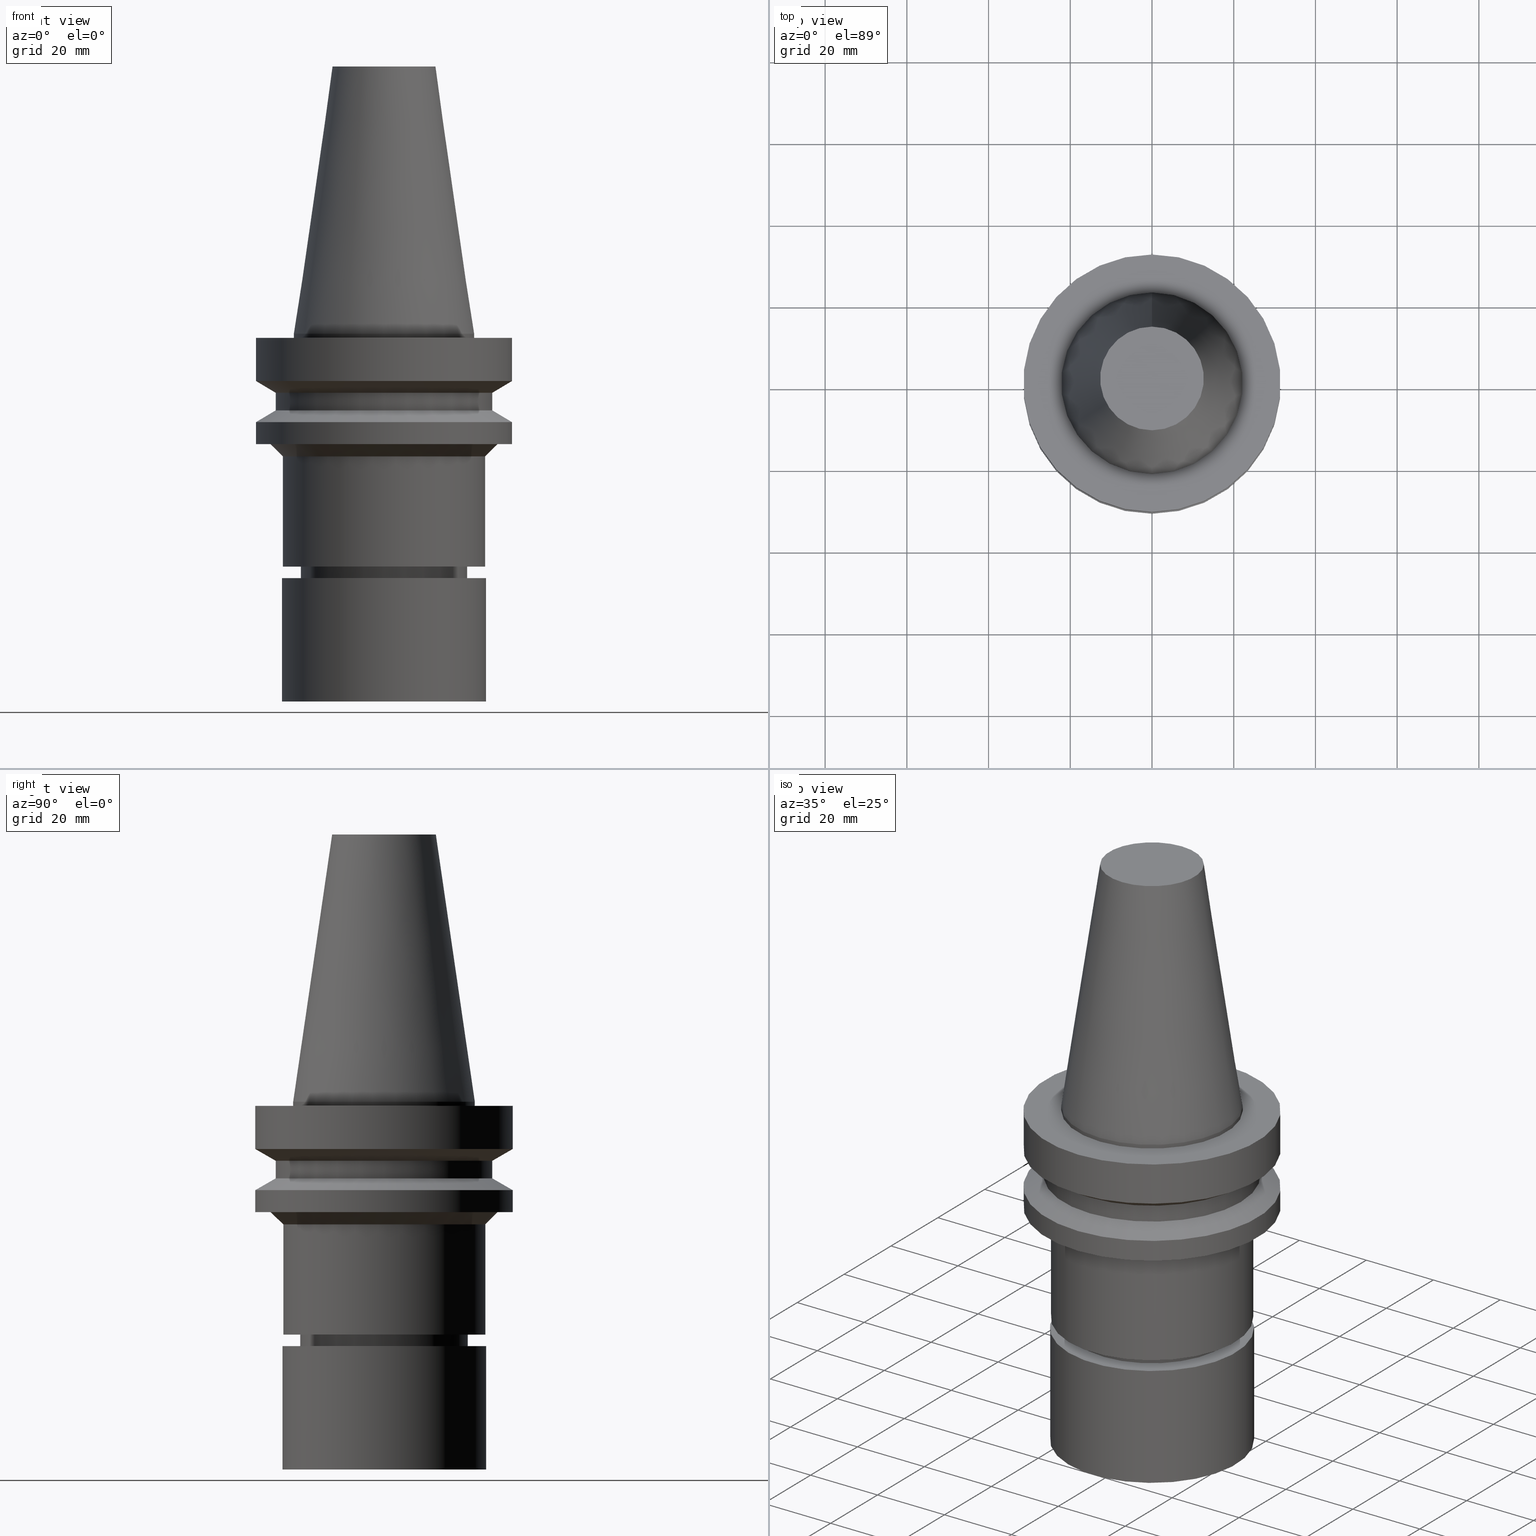
[diagram: canonical four-view strip — front | top / right | iso, engineering-drawing reading convention]
A machine part, canonical four-view strip (front | top / right | iso — engineering-drawing reading convention). The complete STEP part file that produces these views, byte-faithful:
ISO-10303-21;
HEADER;
FILE_DESCRIPTION((''),'1');
FILE_NAME('V:/90_\X2\53D65F9730C730FC30BF\X0\/00_\X2\6DE18DEF30C730FC30BF\X0\/ALL/BBT-BKUS\X2\FF76FF80FF9BFF78FF9E752852A05DE556F3\X0\201801/BBT40-MEGAER/BBT40-MEGAER32-90NL.stp','2018-02-07T02:28:29',(''),(''),'Spatial Interop R21 SP3','Kubotek KeyCreator 2011 V10.0.2 (22737)',' ');
FILE_SCHEMA(('automotive_design'));
ENDSEC;
DATA;
#1=MECHANICAL_DESIGN_GEOMETRIC_PRESENTATION_REPRESENTATION(' ',(#14,#15,#16,#17,#18,#19,#20,#21,#22,#23,#24,#25,#26,#27,#28,#29,#30,#31,#32,#33,#34,#35,#36,#37,#38,#39,#40,#41,#42,#43,#44,#45,#46,#47,#48,#49,#50,#51,#52,#53,#54,#55),#10);
#2=PRODUCT_DEFINITION_CONTEXT('',#56,'design');
#3=APPLICATION_PROTOCOL_DEFINITION('INTERNATIONAL STANDARD','automotive_design',1994,#56);
#4=PRODUCT_CATEGORY_RELATIONSHIP('NONE','NONE',#57,#58);
#5=SHAPE_DEFINITION_REPRESENTATION(#59,#60);
#6=PRODUCT_DEFINITION_CONTEXT('',#61,'design');
#7=APPLICATION_PROTOCOL_DEFINITION('INTERNATIONAL STANDARD','automotive_design',1994,#61);
#8=PRODUCT_CATEGORY_RELATIONSHIP('NONE','NONE',#62,#63);
#9=SHAPE_DEFINITION_REPRESENTATION(#64,#65);
#10= (GEOMETRIC_REPRESENTATION_CONTEXT(3)GLOBAL_UNCERTAINTY_ASSIGNED_CONTEXT((#68))GLOBAL_UNIT_ASSIGNED_CONTEXT((#70,#71,#72))REPRESENTATION_CONTEXT('NONE','WORKSPACE'));
#14=STYLED_ITEM('',(#74,#75),#76);
#15=STYLED_ITEM('',(#77,#78),#79);
#16=STYLED_ITEM('',(#80),#81);
#17=STYLED_ITEM('',(#82,#83),#84);
#18=STYLED_ITEM('',(#85),#86);
#19=STYLED_ITEM('',(#87),#88);
#20=STYLED_ITEM('',(#89),#90);
#21=STYLED_ITEM('',(#91,#92),#93);
#22=STYLED_ITEM('',(#94),#95);
#23=STYLED_ITEM('',(#96,#97),#98);
#24=STYLED_ITEM('',(#99),#100);
#25=STYLED_ITEM('',(#101,#102),#103);
#26=STYLED_ITEM('',(#104),#105);
#27=STYLED_ITEM('',(#106),#107);
#28=STYLED_ITEM('',(#108),#109);
#29=STYLED_ITEM('',(#110,#111),#112);
#30=STYLED_ITEM('',(#113),#114);
#31=STYLED_ITEM('',(#115,#116),#117);
#32=STYLED_ITEM('',(#118),#119);
#33=STYLED_ITEM('',(#120,#121),#122);
#34=STYLED_ITEM('',(#123,#124),#125);
#35=STYLED_ITEM('',(#126),#127);
#36=STYLED_ITEM('',(#128,#129),#130);
#37=STYLED_ITEM('',(#131,#132),#133);
#38=STYLED_ITEM('',(#134),#135);
#39=STYLED_ITEM('',(#136,#137),#138);
#40=STYLED_ITEM('',(#139),#140);
#41=STYLED_ITEM('',(#141,#142),#143);
#42=STYLED_ITEM('',(#144,#145),#146);
#43=STYLED_ITEM('',(#147,#148),#149);
#44=STYLED_ITEM('',(#150,#151),#152);
#45=STYLED_ITEM('',(#153),#154);
#46=STYLED_ITEM('',(#155,#156),#157);
#47=STYLED_ITEM('',(#158),#159);
#48=STYLED_ITEM('',(#160,#161),#162);
#49=STYLED_ITEM('',(#163),#164);
#50=STYLED_ITEM('',(#165),#166);
#51=STYLED_ITEM('',(#167,#168),#169);
#52=STYLED_ITEM('',(#170,#171),#172);
#53=STYLED_ITEM('',(#173),#174);
#54=STYLED_ITEM('',(#175,#176),#177);
#55=STYLED_ITEM('',(#178,#179),#180);
#56=APPLICATION_CONTEXT(' ');
#57=PRODUCT_CATEGORY('part','NONE');
#58=PRODUCT_RELATED_PRODUCT_CATEGORY('detail',' ',(#181));
#59=PRODUCT_DEFINITION_SHAPE('NONE','NONE',#182);
#60=ADVANCED_BREP_SHAPE_REPRESENTATION('Unnamed[1]',(#180,#183),#10);
#61=APPLICATION_CONTEXT(' ');
#62=PRODUCT_CATEGORY('part','NONE');
#63=PRODUCT_RELATED_PRODUCT_CATEGORY('detail',' ',(#184));
#64=PRODUCT_DEFINITION_SHAPE('NONE','NONE',#185);
#65=ADVANCED_BREP_SHAPE_REPRESENTATION('Unnamed[1]',(#125,#186),#10);
#68=UNCERTAINTY_MEASURE_WITH_UNIT(LENGTH_MEASURE(1.0E-006),#70,'','');
#70= (CONVERSION_BASED_UNIT('MILLIMETRE',#189)LENGTH_UNIT()NAMED_UNIT(#192));
#71= (NAMED_UNIT(#194)PLANE_ANGLE_UNIT()SI_UNIT($,.RADIAN.));
#72= (NAMED_UNIT(#194)SOLID_ANGLE_UNIT()SI_UNIT($,.STERADIAN.));
#74=PRESENTATION_STYLE_ASSIGNMENT((#200));
#75=PRESENTATION_STYLE_ASSIGNMENT((#201));
#76=ADVANCED_FACE('Unnamed[1]',(#202,#203),#204,.T.);
#77=PRESENTATION_STYLE_ASSIGNMENT((#205));
#78=PRESENTATION_STYLE_ASSIGNMENT((#206));
#79=ADVANCED_FACE('Unnamed[1]',(#207,#208),#209,.F.);
#80=PRESENTATION_STYLE_ASSIGNMENT((#210));
#81=EDGE_CURVE('Unnamed[1]',#211,#211,#212,.T.);
#82=PRESENTATION_STYLE_ASSIGNMENT((#213));
#83=PRESENTATION_STYLE_ASSIGNMENT((#214));
#84=ADVANCED_FACE('Unnamed[1]',(#215,#216),#217,.T.);
#85=PRESENTATION_STYLE_ASSIGNMENT((#218));
#86=EDGE_CURVE('Unnamed[1]',#219,#219,#220,.T.);
#87=PRESENTATION_STYLE_ASSIGNMENT((#221));
#88=EDGE_CURVE('Unnamed[1]',#222,#222,#223,.T.);
#89=PRESENTATION_STYLE_ASSIGNMENT((#224));
#90=EDGE_CURVE('Unnamed[1]',#225,#225,#226,.T.);
#91=PRESENTATION_STYLE_ASSIGNMENT((#227));
#92=PRESENTATION_STYLE_ASSIGNMENT((#228));
#93=ADVANCED_FACE('Unnamed[1]',(#229,#230),#231,.T.);
#94=PRESENTATION_STYLE_ASSIGNMENT((#232));
#95=EDGE_CURVE('Unnamed[1]',#233,#233,#234,.T.);
#96=PRESENTATION_STYLE_ASSIGNMENT((#235));
#97=PRESENTATION_STYLE_ASSIGNMENT((#236));
#98=ADVANCED_FACE('Unnamed[1]',(#237),#238,.T.);
#99=PRESENTATION_STYLE_ASSIGNMENT((#239));
#100=EDGE_CURVE('Unnamed[1]',#240,#240,#241,.T.);
#101=PRESENTATION_STYLE_ASSIGNMENT((#242));
#102=PRESENTATION_STYLE_ASSIGNMENT((#243));
#103=ADVANCED_FACE('Unnamed[1]',(#244,#245),#246,.T.);
#104=PRESENTATION_STYLE_ASSIGNMENT((#247));
#105=EDGE_CURVE('Unnamed[1]',#248,#248,#249,.T.);
#106=PRESENTATION_STYLE_ASSIGNMENT((#250));
#107=EDGE_CURVE('Unnamed[1]',#251,#251,#252,.T.);
#108=PRESENTATION_STYLE_ASSIGNMENT((#253));
#109=EDGE_CURVE('Unnamed[1]',#254,#254,#255,.T.);
#110=PRESENTATION_STYLE_ASSIGNMENT((#256));
#111=PRESENTATION_STYLE_ASSIGNMENT((#257));
#112=ADVANCED_FACE('Unnamed[1]',(#258,#259),#260,.T.);
#113=PRESENTATION_STYLE_ASSIGNMENT((#261));
#114=EDGE_CURVE('Unnamed[1]',#262,#262,#263,.T.);
#115=PRESENTATION_STYLE_ASSIGNMENT((#264));
#116=PRESENTATION_STYLE_ASSIGNMENT((#265));
#117=ADVANCED_FACE('Unnamed[1]',(#266),#267,.T.);
#118=PRESENTATION_STYLE_ASSIGNMENT((#268));
#119=EDGE_CURVE('Unnamed[1]',#269,#269,#270,.T.);
#120=PRESENTATION_STYLE_ASSIGNMENT((#271));
#121=PRESENTATION_STYLE_ASSIGNMENT((#272));
#122=ADVANCED_FACE('Unnamed[1]',(#273),#274,.T.);
#123=PRESENTATION_STYLE_ASSIGNMENT((#275));
#124=PRESENTATION_STYLE_ASSIGNMENT((#276));
#125=MANIFOLD_SOLID_BREP('Unnamed[1]',#277);
#126=PRESENTATION_STYLE_ASSIGNMENT((#278));
#127=EDGE_CURVE('Unnamed[1]',#279,#279,#280,.T.);
#128=PRESENTATION_STYLE_ASSIGNMENT((#281));
#129=PRESENTATION_STYLE_ASSIGNMENT((#282));
#130=ADVANCED_FACE('Unnamed[1]',(#283,#284),#285,.T.);
#131=PRESENTATION_STYLE_ASSIGNMENT((#286));
#132=PRESENTATION_STYLE_ASSIGNMENT((#287));
#133=ADVANCED_FACE('Unnamed[1]',(#288,#289),#290,.T.);
#134=PRESENTATION_STYLE_ASSIGNMENT((#291));
#135=EDGE_CURVE('Unnamed[1]',#292,#292,#293,.T.);
#136=PRESENTATION_STYLE_ASSIGNMENT((#294));
#137=PRESENTATION_STYLE_ASSIGNMENT((#295));
#138=ADVANCED_FACE('Unnamed[1]',(#296,#297),#298,.T.);
#139=PRESENTATION_STYLE_ASSIGNMENT((#299));
#140=EDGE_CURVE('Unnamed[1]',#300,#300,#301,.T.);
#141=PRESENTATION_STYLE_ASSIGNMENT((#302));
#142=PRESENTATION_STYLE_ASSIGNMENT((#303));
#143=ADVANCED_FACE('Unnamed[1]',(#304,#305),#306,.T.);
#144=PRESENTATION_STYLE_ASSIGNMENT((#307));
#145=PRESENTATION_STYLE_ASSIGNMENT((#308));
#146=ADVANCED_FACE('Unnamed[1]',(#309,#310),#311,.T.);
#147=PRESENTATION_STYLE_ASSIGNMENT((#312));
#148=PRESENTATION_STYLE_ASSIGNMENT((#313));
#149=ADVANCED_FACE('Unnamed[1]',(#314,#315),#316,.T.);
#150=PRESENTATION_STYLE_ASSIGNMENT((#317));
#151=PRESENTATION_STYLE_ASSIGNMENT((#318));
#152=ADVANCED_FACE('Unnamed[1]',(#319,#320),#321,.T.);
#153=PRESENTATION_STYLE_ASSIGNMENT((#322));
#154=EDGE_CURVE('Unnamed[1]',#323,#323,#324,.T.);
#155=PRESENTATION_STYLE_ASSIGNMENT((#325));
#156=PRESENTATION_STYLE_ASSIGNMENT((#326));
#157=ADVANCED_FACE('Unnamed[1]',(#327,#328),#329,.T.);
#158=PRESENTATION_STYLE_ASSIGNMENT((#330));
#159=EDGE_CURVE('Unnamed[1]',#331,#331,#332,.T.);
#160=PRESENTATION_STYLE_ASSIGNMENT((#333));
#161=PRESENTATION_STYLE_ASSIGNMENT((#334));
#162=ADVANCED_FACE('Unnamed[1]',(#335,#336),#337,.T.);
#163=PRESENTATION_STYLE_ASSIGNMENT((#338));
#164=EDGE_CURVE('Unnamed[1]',#339,#339,#340,.T.);
#165=PRESENTATION_STYLE_ASSIGNMENT((#341));
#166=EDGE_CURVE('Unnamed[1]',#342,#342,#343,.T.);
#167=PRESENTATION_STYLE_ASSIGNMENT((#344));
#168=PRESENTATION_STYLE_ASSIGNMENT((#345));
#169=ADVANCED_FACE('Unnamed[1]',(#346,#347),#348,.T.);
#170=PRESENTATION_STYLE_ASSIGNMENT((#349));
#171=PRESENTATION_STYLE_ASSIGNMENT((#350));
#172=ADVANCED_FACE('Unnamed[1]',(#351,#352),#353,.T.);
#173=PRESENTATION_STYLE_ASSIGNMENT((#354));
#174=EDGE_CURVE('Unnamed[1]',#355,#355,#356,.T.);
#175=PRESENTATION_STYLE_ASSIGNMENT((#357));
#176=PRESENTATION_STYLE_ASSIGNMENT((#358));
#177=ADVANCED_FACE('Unnamed[1]',(#359),#360,.T.);
#178=PRESENTATION_STYLE_ASSIGNMENT((#361));
#179=PRESENTATION_STYLE_ASSIGNMENT((#362));
#180=MANIFOLD_SOLID_BREP('Unnamed[1]',#363);
#181=PRODUCT('Unnamed[1]','Unnamed[1]','PART-Unnamed[1]-DESC',(#364));
#182=PRODUCT_DEFINITION('NONE','NONE',#365,#2);
#183=AXIS2_PLACEMENT_3D('',#366,#367,#368);
#184=PRODUCT('Unnamed[1]','Unnamed[1]','PART-Unnamed[1]-DESC',(#369));
#185=PRODUCT_DEFINITION('NONE','NONE',#370,#6);
#186=AXIS2_PLACEMENT_3D('',#371,#372,#373);
#189=LENGTH_MEASURE_WITH_UNIT(LENGTH_MEASURE(1.0),#374);
#192=DIMENSIONAL_EXPONENTS(1.0,0.0,0.0,0.0,0.0,0.0,0.0);
#194=DIMENSIONAL_EXPONENTS(0.0,0.0,0.0,0.0,0.0,0.0,0.0);
#200=SURFACE_STYLE_USAGE(.BOTH.,#375);
#201=CURVE_STYLE('',#376,POSITIVE_LENGTH_MEASURE(1000.0),#377);
#202=FACE_BOUND('',#378,.T.);
#203=FACE_BOUND('',#379,.T.);
#204=CONICAL_SURFACE('',#380,17.4562500000001,0.144812498238936);
#205=SURFACE_STYLE_USAGE(.BOTH.,#381);
#206=CURVE_STYLE('',#382,POSITIVE_LENGTH_MEASURE(1000.0),#383);
#207=FACE_BOUND('',#384,.T.);
#208=FACE_BOUND('',#385,.T.);
#209=CONICAL_SURFACE('',#386,29.6500621984489,1.57075486116235);
#210=CURVE_STYLE('',#387,POSITIVE_LENGTH_MEASURE(1000.0),#388);
#211=VERTEX_POINT('',#389);
#212=CIRCLE('',#390,26.4999999999994);
#213=SURFACE_STYLE_USAGE(.BOTH.,#391);
#214=CURVE_STYLE('',#392,POSITIVE_LENGTH_MEASURE(1000.0),#393);
#215=FACE_BOUND('',#394,.T.);
#216=FACE_BOUND('',#395,.T.);
#217=CYLINDRICAL_SURFACE('',#396,22.225);
#218=CURVE_STYLE('',#397,POSITIVE_LENGTH_MEASURE(1000.0),#398);
#219=VERTEX_POINT('',#399);
#220=CIRCLE('',#400,31.5000000000003);
#221=CURVE_STYLE('',#401,POSITIVE_LENGTH_MEASURE(1000.0),#402);
#222=VERTEX_POINT('',#403);
#223=CIRCLE('',#404,31.5000000000007);
#224=CURVE_STYLE('',#405,POSITIVE_LENGTH_MEASURE(1000.0),#406);
#225=VERTEX_POINT('',#407);
#226=CIRCLE('',#408,24.9999999999999);
#227=SURFACE_STYLE_USAGE(.BOTH.,#409);
#228=CURVE_STYLE('',#410,POSITIVE_LENGTH_MEASURE(1000.0),#411);
#229=FACE_BOUND('',#412,.T.);
#230=FACE_BOUND('',#413,.T.);
#231=CONICAL_SURFACE('',#414,28.9999999999999,1.04719755119657);
#232=CURVE_STYLE('',#415,POSITIVE_LENGTH_MEASURE(1000.0),#416);
#233=VERTEX_POINT('',#417);
#234=CIRCLE('',#418,12.6875000000001);
#235=SURFACE_STYLE_USAGE(.BOTH.,#419);
#236=CURVE_STYLE('',#420,POSITIVE_LENGTH_MEASURE(1000.0),#421);
#237=FACE_OUTER_BOUND('',#422,.T.);
#238=PLANE('',#423);
#239=CURVE_STYLE('',#424,POSITIVE_LENGTH_MEASURE(1000.0),#425);
#240=VERTEX_POINT('',#426);
#241=CIRCLE('',#427,26.5);
#242=SURFACE_STYLE_USAGE(.BOTH.,#428);
#243=CURVE_STYLE('',#429,POSITIVE_LENGTH_MEASURE(1000.0),#430);
#244=FACE_BOUND('',#431,.T.);
#245=FACE_BOUND('',#432,.T.);
#246=CYLINDRICAL_SURFACE('',#433,31.5000000000005);
#247=CURVE_STYLE('',#434,POSITIVE_LENGTH_MEASURE(1000.0),#435);
#248=VERTEX_POINT('',#436);
#249=CIRCLE('',#437,20.499999999991);
#250=CURVE_STYLE('',#438,POSITIVE_LENGTH_MEASURE(1000.0),#439);
#251=VERTEX_POINT('',#440);
#252=CIRCLE('',#441,18.8999999999996);
#253=CURVE_STYLE('',#442,POSITIVE_LENGTH_MEASURE(1000.0),#443);
#254=VERTEX_POINT('',#444);
#255=CIRCLE('',#445,24.9999999999999);
#256=SURFACE_STYLE_USAGE(.BOTH.,#446);
#257=CURVE_STYLE('',#447,POSITIVE_LENGTH_MEASURE(1000.0),#448);
#258=FACE_OUTER_BOUND('',#449,.T.);
#259=FACE_BOUND('',#450,.T.);
#260=PLANE('',#451);
#261=CURVE_STYLE('',#452,POSITIVE_LENGTH_MEASURE(1000.0),#453);
#262=VERTEX_POINT('',#454);
#263=CIRCLE('',#455,20.5000000000011);
#264=SURFACE_STYLE_USAGE(.BOTH.,#456);
#265=CURVE_STYLE('',#457,POSITIVE_LENGTH_MEASURE(1000.0),#458);
#266=FACE_OUTER_BOUND('',#459,.T.);
#267=PLANE('',#460);
#268=CURVE_STYLE('',#461,POSITIVE_LENGTH_MEASURE(1000.0),#462);
#269=VERTEX_POINT('',#463);
#270=CIRCLE('',#464,24.8000000000002);
#271=SURFACE_STYLE_USAGE(.BOTH.,#465);
#272=CURVE_STYLE('',#466,POSITIVE_LENGTH_MEASURE(1000.0),#467);
#273=FACE_OUTER_BOUND('',#468,.T.);
#274=PLANE('',#469);
#275=SURFACE_STYLE_USAGE(.BOTH.,#470);
#276=CURVE_STYLE('',#471,POSITIVE_LENGTH_MEASURE(1000.0),#472);
#277=CLOSED_SHELL('',(#177,#117,#157));
#278=CURVE_STYLE('',#473,POSITIVE_LENGTH_MEASURE(1000.0),#474);
#279=VERTEX_POINT('',#475);
#280=CIRCLE('',#476,24.7999999999998);
#281=SURFACE_STYLE_USAGE(.BOTH.,#477);
#282=CURVE_STYLE('',#478,POSITIVE_LENGTH_MEASURE(1000.0),#479);
#283=FACE_BOUND('',#480,.T.);
#284=FACE_BOUND('',#481,.T.);
#285=CONICAL_SURFACE('',#482,29.0000000000003,1.04719755119651);
#286=SURFACE_STYLE_USAGE(.BOTH.,#483);
#287=CURVE_STYLE('',#484,POSITIVE_LENGTH_MEASURE(1000.0),#485);
#288=FACE_BOUND('',#486,.T.);
#289=FACE_OUTER_BOUND('',#487,.T.);
#290=PLANE('',#488);
#291=CURVE_STYLE('',#489,POSITIVE_LENGTH_MEASURE(1000.0),#490);
#292=VERTEX_POINT('',#491);
#293=CIRCLE('',#492,31.5000000000003);
#294=SURFACE_STYLE_USAGE(.BOTH.,#493);
#295=CURVE_STYLE('',#494,POSITIVE_LENGTH_MEASURE(1000.0),#495);
#296=FACE_BOUND('',#496,.T.);
#297=FACE_BOUND('',#497,.T.);
#298=CYLINDRICAL_SURFACE('',#498,24.8);
#299=CURVE_STYLE('',#499,POSITIVE_LENGTH_MEASURE(1000.0),#500);
#300=VERTEX_POINT('',#501);
#301=CIRCLE('',#502,22.225);
#302=SURFACE_STYLE_USAGE(.BOTH.,#503);
#303=CURVE_STYLE('',#504,POSITIVE_LENGTH_MEASURE(1000.0),#505);
#304=FACE_BOUND('',#506,.T.);
#305=FACE_BOUND('',#507,.T.);
#306=CYLINDRICAL_SURFACE('',#508,31.5);
#307=SURFACE_STYLE_USAGE(.BOTH.,#509);
#308=CURVE_STYLE('',#510,POSITIVE_LENGTH_MEASURE(1000.0),#511);
#309=FACE_BOUND('',#512,.T.);
#310=FACE_BOUND('',#513,.T.);
#311=CONICAL_SURFACE('',#514,20.2500000000005,1.04719755120247);
#312=SURFACE_STYLE_USAGE(.BOTH.,#515);
#313=CURVE_STYLE('',#516,POSITIVE_LENGTH_MEASURE(1000.0),#517);
#314=FACE_BOUND('',#518,.T.);
#315=FACE_BOUND('',#519,.T.);
#316=CYLINDRICAL_SURFACE('',#520,20.4999999999961);
#317=SURFACE_STYLE_USAGE(.BOTH.,#521);
#318=CURVE_STYLE('',#522,POSITIVE_LENGTH_MEASURE(1000.0),#523);
#319=FACE_BOUND('',#524,.T.);
#320=FACE_BOUND('',#525,.T.);
#321=CYLINDRICAL_SURFACE('',#526,20.0);
#322=CURVE_STYLE('',#527,POSITIVE_LENGTH_MEASURE(1000.0),#528);
#323=VERTEX_POINT('',#529);
#324=CIRCLE('',#530,27.8001243968974);
#325=SURFACE_STYLE_USAGE(.BOTH.,#531);
#326=CURVE_STYLE('',#532,POSITIVE_LENGTH_MEASURE(1000.0),#533);
#327=FACE_BOUND('',#534,.T.);
#328=FACE_BOUND('',#535,.T.);
#329=CYLINDRICAL_SURFACE('',#536,24.9999999999999);
#330=CURVE_STYLE('',#537,POSITIVE_LENGTH_MEASURE(1000.0),#538);
#331=VERTEX_POINT('',#539);
#332=CIRCLE('',#540,20.0);
#333=SURFACE_STYLE_USAGE(.BOTH.,#541);
#334=CURVE_STYLE('',#542,POSITIVE_LENGTH_MEASURE(1000.0),#543);
#335=FACE_BOUND('',#544,.T.);
#336=FACE_BOUND('',#545,.T.);
#337=CONICAL_SURFACE('',#546,26.3000621984486,0.785418896213715);
#338=CURVE_STYLE('',#547,POSITIVE_LENGTH_MEASURE(1000.0),#548);
#339=VERTEX_POINT('',#549);
#340=CIRCLE('',#550,20.0);
#341=CURVE_STYLE('',#551,POSITIVE_LENGTH_MEASURE(1000.0),#552);
#342=VERTEX_POINT('',#553);
#343=CIRCLE('',#554,22.225);
#344=SURFACE_STYLE_USAGE(.BOTH.,#555);
#345=CURVE_STYLE('',#556,POSITIVE_LENGTH_MEASURE(1000.0),#557);
#346=FACE_BOUND('',#558,.T.);
#347=FACE_BOUND('',#559,.T.);
#348=CYLINDRICAL_SURFACE('',#560,26.4999999999997);
#349=SURFACE_STYLE_USAGE(.BOTH.,#561);
#350=CURVE_STYLE('',#562,POSITIVE_LENGTH_MEASURE(1000.0),#563);
#351=FACE_BOUND('',#564,.T.);
#352=FACE_BOUND('',#565,.T.);
#353=CONICAL_SURFACE('',#566,19.4499999999998,0.523598775598222);
#354=CURVE_STYLE('',#567,POSITIVE_LENGTH_MEASURE(1000.0),#568);
#355=VERTEX_POINT('',#569);
#356=CIRCLE('',#570,31.4999999999996);
#357=SURFACE_STYLE_USAGE(.BOTH.,#571);
#358=CURVE_STYLE('',#572,POSITIVE_LENGTH_MEASURE(1000.0),#573);
#359=FACE_OUTER_BOUND('',#574,.T.);
#360=PLANE('',#575);
#361=SURFACE_STYLE_USAGE(.BOTH.,#576);
#362=CURVE_STYLE('',#577,POSITIVE_LENGTH_MEASURE(1000.0),#578);
#363=CLOSED_SHELL('',(#122,#76,#84,#112,#143,#93,#169,#130,#103,#79,#162,#138,#133,#149,#146,#152,#172,#98));
#364=PRODUCT_CONTEXT('',#56,'mechanical');
#365=PRODUCT_DEFINITION_FORMATION_WITH_SPECIFIED_SOURCE(' ','NONE',#181,.NOT_KNOWN.);
#366=CARTESIAN_POINT('',(0.0,0.0,0.0));
#367=DIRECTION('',(0.0,0.0,1.0));
#368=DIRECTION('',(1.0,0.0,0.0));
#369=PRODUCT_CONTEXT('',#61,'mechanical');
#370=PRODUCT_DEFINITION_FORMATION_WITH_SPECIFIED_SOURCE(' ','NONE',#184,.NOT_KNOWN.);
#371=CARTESIAN_POINT('',(0.0,0.0,0.0));
#372=DIRECTION('',(0.0,0.0,1.0));
#373=DIRECTION('',(1.0,0.0,0.0));
#374= (NAMED_UNIT(#192)LENGTH_UNIT()SI_UNIT(.MILLI.,.METRE.));
#375=SURFACE_SIDE_STYLE('',(#580));
#376=DRAUGHTING_PRE_DEFINED_CURVE_FONT('continuous');
#377=COLOUR_RGB('',0.0,1.0,0.0);
#378=EDGE_LOOP('',(#581));
#379=EDGE_LOOP('',(#582));
#380=AXIS2_PLACEMENT_3D('',#583,#584,#585);
#381=SURFACE_SIDE_STYLE('',(#586));
#382=DRAUGHTING_PRE_DEFINED_CURVE_FONT('continuous');
#383=COLOUR_RGB('',0.0,1.0,0.0);
#384=EDGE_LOOP('',(#587));
#385=EDGE_LOOP('',(#588));
#386=AXIS2_PLACEMENT_3D('',#589,#590,#591);
#387=DRAUGHTING_PRE_DEFINED_CURVE_FONT('continuous');
#388=COLOUR_RGB('',0.0,1.0,0.0);
#389=CARTESIAN_POINT('',(8.8494551369045E-016,26.4999999999995,-14.4522569986152));
#390=AXIS2_PLACEMENT_3D('',#592,#593,#594);
#391=SURFACE_SIDE_STYLE('',(#595));
#392=DRAUGHTING_PRE_DEFINED_CURVE_FONT('continuous');
#393=COLOUR_RGB('',0.0,1.0,0.0);
#394=EDGE_LOOP('',(#596));
#395=EDGE_LOOP('',(#597));
#396=AXIS2_PLACEMENT_3D('',#598,#599,#600);
#397=DRAUGHTING_PRE_DEFINED_CURVE_FONT('continuous');
#398=COLOUR_RGB('',0.0,1.0,0.0);
#399=CARTESIAN_POINT('',(7.08182973902924E-016,31.5000000000004,-11.5655056526664));
#400=AXIS2_PLACEMENT_3D('',#601,#602,#603);
#401=DRAUGHTING_PRE_DEFINED_CURVE_FONT('continuous');
#402=COLOUR_RGB('',0.0,1.0,0.0);
#403=CARTESIAN_POINT('',(1.32473071268174E-015,31.5000000000007,-21.6344943473346));
#404=AXIS2_PLACEMENT_3D('',#604,#605,#606);
#405=DRAUGHTING_PRE_DEFINED_CURVE_FONT('continuous');
#406=COLOUR_RGB('',0.0,1.0,0.0);
#407=CARTESIAN_POINT('',(5.51091059616309E-015,25.0,-90.0));
#408=AXIS2_PLACEMENT_3D('',#607,#608,#609);
#409=SURFACE_SIDE_STYLE('',(#610));
#410=DRAUGHTING_PRE_DEFINED_CURVE_FONT('continuous');
#411=COLOUR_RGB('',0.0,1.0,0.0);
#412=EDGE_LOOP('',(#611));
#413=EDGE_LOOP('',(#612));
#414=AXIS2_PLACEMENT_3D('',#613,#614,#615);
#415=DRAUGHTING_PRE_DEFINED_CURVE_FONT('continuous');
#416=COLOUR_RGB('',0.0,1.0,0.0);
#417=CARTESIAN_POINT('',(-4.00459503321185E-015,12.6875000000002,65.4000000000001));
#418=AXIS2_PLACEMENT_3D('',#616,#617,#618);
#419=SURFACE_SIDE_STYLE('',(#619));
#420=DRAUGHTING_PRE_DEFINED_CURVE_FONT('continuous');
#421=COLOUR_RGB('',0.0,1.0,0.0);
#422=EDGE_LOOP('',(#620));
#423=AXIS2_PLACEMENT_3D('',#621,#622,#623);
#424=DRAUGHTING_PRE_DEFINED_CURVE_FONT('continuous');
#425=COLOUR_RGB('',0.0,1.0,0.0);
#426=CARTESIAN_POINT('',(1.1479681728942E-015,26.5,-18.7477430013855));
#427=AXIS2_PLACEMENT_3D('',#624,#625,#626);
#428=SURFACE_SIDE_STYLE('',(#627));
#429=DRAUGHTING_PRE_DEFINED_CURVE_FONT('continuous');
#430=COLOUR_RGB('',0.0,1.0,0.0);
#431=EDGE_LOOP('',(#628));
#432=EDGE_LOOP('',(#629));
#433=AXIS2_PLACEMENT_3D('',#630,#631,#632);
#434=DRAUGHTING_PRE_DEFINED_CURVE_FONT('continuous');
#435=COLOUR_RGB('',0.0,1.0,0.0);
#436=CARTESIAN_POINT('',(3.49025302591329E-015,20.4999999999911,-57.0001575694044));
#437=AXIS2_PLACEMENT_3D('',#633,#634,#635);
#438=DRAUGHTING_PRE_DEFINED_CURVE_FONT('continuous');
#439=COLOUR_RGB('',0.0,1.0,0.0);
#440=CARTESIAN_POINT('',(4.83735485663205E-015,18.8999999999997,-79.0000000000001));
#441=AXIS2_PLACEMENT_3D('',#636,#637,#638);
#442=DRAUGHTING_PRE_DEFINED_CURVE_FONT('continuous');
#443=COLOUR_RGB('',0.0,1.0,0.0);
#444=CARTESIAN_POINT('',(3.66169392945059E-015,25.0,-59.8));
#445=AXIS2_PLACEMENT_3D('',#639,#640,#641);
#446=SURFACE_SIDE_STYLE('',(#642));
#447=DRAUGHTING_PRE_DEFINED_CURVE_FONT('continuous');
#448=COLOUR_RGB('',0.0,1.0,0.0);
#449=EDGE_LOOP('',(#643));
#450=EDGE_LOOP('',(#644));
#451=AXIS2_PLACEMENT_3D('',#645,#646,#647);
#452=DRAUGHTING_PRE_DEFINED_CURVE_FONT('continuous');
#453=COLOUR_RGB('',0.0,1.0,0.0);
#454=CARTESIAN_POINT('',(3.87058698165691E-015,20.5000000000011,-63.211482434801));
#455=AXIS2_PLACEMENT_3D('',#648,#649,#650);
#456=SURFACE_SIDE_STYLE('',(#651));
#457=DRAUGHTING_PRE_DEFINED_CURVE_FONT('continuous');
#458=COLOUR_RGB('',0.0,1.0,0.0);
#459=EDGE_LOOP('',(#652));
#460=AXIS2_PLACEMENT_3D('',#653,#654,#655);
#461=DRAUGHTING_PRE_DEFINED_CURVE_FONT('continuous');
#462=COLOUR_RGB('',0.0,1.0,0.0);
#463=CARTESIAN_POINT('',(3.49025302591327E-015,24.8000000000003,-57.0001575694041));
#464=AXIS2_PLACEMENT_3D('',#656,#657,#658);
#465=SURFACE_SIDE_STYLE('',(#659));
#466=DRAUGHTING_PRE_DEFINED_CURVE_FONT('continuous');
#467=COLOUR_RGB('',0.0,1.0,0.0);
#468=EDGE_LOOP('',(#660));
#469=AXIS2_PLACEMENT_3D('',#661,#662,#663);
#470=SURFACE_SIDE_STYLE('',(#664));
#471=DRAUGHTING_PRE_DEFINED_CURVE_FONT('continuous');
#472=COLOUR_RGB('',0.0,1.0,0.0);
#473=DRAUGHTING_PRE_DEFINED_CURVE_FONT('continuous');
#474=COLOUR_RGB('',0.0,1.0,0.0);
#475=CARTESIAN_POINT('',(1.83697045278272E-015,24.7999999999998,-30.0000041491423));
#476=AXIS2_PLACEMENT_3D('',#665,#666,#667);
#477=SURFACE_SIDE_STYLE('',(#668));
#478=DRAUGHTING_PRE_DEFINED_CURVE_FONT('continuous');
#479=COLOUR_RGB('',0.0,1.0,0.0);
#480=EDGE_LOOP('',(#669));
#481=EDGE_LOOP('',(#670));
#482=AXIS2_PLACEMENT_3D('',#671,#672,#673);
#483=SURFACE_SIDE_STYLE('',(#674));
#484=DRAUGHTING_PRE_DEFINED_CURVE_FONT('continuous');
#485=COLOUR_RGB('',0.0,1.0,0.0);
#486=EDGE_LOOP('',(#675));
#487=EDGE_LOOP('',(#676));
#488=AXIS2_PLACEMENT_3D('',#677,#678,#679);
#489=DRAUGHTING_PRE_DEFINED_CURVE_FONT('continuous');
#490=COLOUR_RGB('',0.0,1.0,0.0);
#491=CARTESIAN_POINT('',(1.65328282719222E-015,31.5000000000004,-27.0001575694036));
#492=AXIS2_PLACEMENT_3D('',#680,#681,#682);
#493=SURFACE_SIDE_STYLE('',(#683));
#494=DRAUGHTING_PRE_DEFINED_CURVE_FONT('continuous');
#495=COLOUR_RGB('',0.0,1.0,0.0);
#496=EDGE_LOOP('',(#684));
#497=EDGE_LOOP('',(#685));
#498=AXIS2_PLACEMENT_3D('',#686,#687,#688);
#499=DRAUGHTING_PRE_DEFINED_CURVE_FONT('continuous');
#500=COLOUR_RGB('',0.0,1.0,0.0);
#501=CARTESIAN_POINT('',(6.12323399573622E-017,22.2250000000001,-0.999999999999912));
#502=AXIS2_PLACEMENT_3D('',#689,#690,#691);
#503=SURFACE_SIDE_STYLE('',(#692));
#504=DRAUGHTING_PRE_DEFINED_CURVE_FONT('continuous');
#505=COLOUR_RGB('',0.0,1.0,0.0);
#506=EDGE_LOOP('',(#693));
#507=EDGE_LOOP('',(#694));
#508=AXIS2_PLACEMENT_3D('',#695,#696,#697);
#509=SURFACE_SIDE_STYLE('',(#698));
#510=DRAUGHTING_PRE_DEFINED_CURVE_FONT('continuous');
#511=COLOUR_RGB('',0.0,1.0,0.0);
#512=EDGE_LOOP('',(#699));
#513=EDGE_LOOP('',(#700));
#514=AXIS2_PLACEMENT_3D('',#701,#702,#703);
#515=SURFACE_SIDE_STYLE('',(#704));
#516=DRAUGHTING_PRE_DEFINED_CURVE_FONT('continuous');
#517=COLOUR_RGB('',0.0,1.0,0.0);
#518=EDGE_LOOP('',(#705));
#519=EDGE_LOOP('',(#706));
#520=AXIS2_PLACEMENT_3D('',#707,#708,#709);
#521=SURFACE_SIDE_STYLE('',(#710));
#522=DRAUGHTING_PRE_DEFINED_CURVE_FONT('continuous');
#523=COLOUR_RGB('',0.0,1.0,0.0);
#524=EDGE_LOOP('',(#711));
#525=EDGE_LOOP('',(#712));
#526=AXIS2_PLACEMENT_3D('',#713,#714,#715);
#527=DRAUGHTING_PRE_DEFINED_CURVE_FONT('continuous');
#528=COLOUR_RGB('',0.0,1.0,0.0);
#529=CARTESIAN_POINT('',(1.65327343306854E-015,27.8001243968975,-27.0000041517213));
#530=AXIS2_PLACEMENT_3D('',#716,#717,#718);
#531=SURFACE_SIDE_STYLE('',(#719));
#532=DRAUGHTING_PRE_DEFINED_CURVE_FONT('continuous');
#533=COLOUR_RGB('',0.0,1.0,0.0);
#534=EDGE_LOOP('',(#720));
#535=EDGE_LOOP('',(#721));
#536=AXIS2_PLACEMENT_3D('',#722,#723,#724);
#537=DRAUGHTING_PRE_DEFINED_CURVE_FONT('continuous');
#538=COLOUR_RGB('',0.0,1.0,0.0);
#539=CARTESIAN_POINT('',(4.72069158037226E-015,20.0,-77.0947441116734));
#540=AXIS2_PLACEMENT_3D('',#725,#726,#727);
#541=SURFACE_SIDE_STYLE('',(#728));
#542=DRAUGHTING_PRE_DEFINED_CURVE_FONT('continuous');
#543=COLOUR_RGB('',0.0,1.0,0.0);
#544=EDGE_LOOP('',(#729));
#545=EDGE_LOOP('',(#730));
#546=AXIS2_PLACEMENT_3D('',#731,#732,#733);
#547=DRAUGHTING_PRE_DEFINED_CURVE_FONT('continuous');
#548=COLOUR_RGB('',0.0,1.0,0.0);
#549=CARTESIAN_POINT('',(3.88826323563546E-015,20.0,-63.5001575693925));
#550=AXIS2_PLACEMENT_3D('',#734,#735,#736);
#551=DRAUGHTING_PRE_DEFINED_CURVE_FONT('continuous');
#552=COLOUR_RGB('',0.0,1.0,0.0);
#553=CARTESIAN_POINT('',(1.71319921032766E-029,22.2250000000001,-2.8153873565375E-013));
#554=AXIS2_PLACEMENT_3D('',#737,#738,#739);
#555=SURFACE_SIDE_STYLE('',(#740));
#556=DRAUGHTING_PRE_DEFINED_CURVE_FONT('continuous');
#557=COLOUR_RGB('',0.0,1.0,0.0);
#558=EDGE_LOOP('',(#741));
#559=EDGE_LOOP('',(#742));
#560=AXIS2_PLACEMENT_3D('',#743,#744,#745);
#561=SURFACE_SIDE_STYLE('',(#746));
#562=DRAUGHTING_PRE_DEFINED_CURVE_FONT('continuous');
#563=COLOUR_RGB('',0.0,1.0,0.0);
#564=EDGE_LOOP('',(#747));
#565=EDGE_LOOP('',(#748));
#566=AXIS2_PLACEMENT_3D('',#749,#750,#751);
#567=DRAUGHTING_PRE_DEFINED_CURVE_FONT('continuous');
#568=COLOUR_RGB('',0.0,1.0,0.0);
#569=CARTESIAN_POINT('',(6.12323399573568E-017,31.4999999999997,-0.999999999999825));
#570=AXIS2_PLACEMENT_3D('',#752,#753,#754);
#571=SURFACE_SIDE_STYLE('',(#755));
#572=DRAUGHTING_PRE_DEFINED_CURVE_FONT('continuous');
#573=COLOUR_RGB('',0.0,1.0,0.0);
#574=EDGE_LOOP('',(#756));
#575=AXIS2_PLACEMENT_3D('',#757,#758,#759);
#576=SURFACE_SIDE_STYLE('',(#760));
#577=DRAUGHTING_PRE_DEFINED_CURVE_FONT('continuous');
#578=COLOUR_RGB('',0.0,1.0,0.0);
#580=SURFACE_STYLE_FILL_AREA(#761);
#581=ORIENTED_EDGE('',*,*,#166,.F.);
#582=ORIENTED_EDGE('',*,*,#95,.T.);
#583=CARTESIAN_POINT('',(-2.00229751660592E-015,6.88785929402024E-014,32.6999999999999));
#584=DIRECTION('',(6.12323399573677E-017,-2.45986715532914E-016,-1.0));
#585=DIRECTION('',(1.02351894597366E-032,1.0,-2.45986715532914E-016));
#586=SURFACE_STYLE_FILL_AREA(#762);
#587=ORIENTED_EDGE('',*,*,#154,.F.);
#588=ORIENTED_EDGE('',*,*,#135,.T.);
#589=CARTESIAN_POINT('',(1.65327813013038E-015,5.41931661322635E-014,-27.0000808605625));
#590=DIRECTION('',(6.12323399573677E-017,-2.45986715532965E-016,-1.0));
#591=DIRECTION('',(1.02351894597422E-032,1.0,-2.45986715532965E-016));
#592=CARTESIAN_POINT('',(8.84945513690449E-016,5.72797641111494E-014,-14.4522569986152));
#593=DIRECTION('',(6.12323399573677E-017,-2.45986715532853E-016,-1.0));
#594=DIRECTION('',(1.02351894597382E-032,1.0,-2.45986715532853E-016));
#595=SURFACE_STYLE_FILL_AREA(#763);
#596=ORIENTED_EDGE('',*,*,#140,.F.);
#597=ORIENTED_EDGE('',*,*,#166,.T.);
#598=CARTESIAN_POINT('',(3.06161699786891E-017,6.07118339845098E-014,-0.500000000000085));
#599=DIRECTION('',(6.12323399573677E-017,-2.45986715532903E-016,-1.0));
#600=DIRECTION('',(1.02351894597385E-032,1.0,-2.45986715532903E-016));
#601=CARTESIAN_POINT('',(7.08182973902923E-016,5.79898665932995E-014,-11.5655056526663));
#602=DIRECTION('',(6.12323399573677E-017,-2.45986715532946E-016,-1.0));
#603=DIRECTION('',(1.02351894597414E-032,1.0,-2.45986715532946E-016));
#604=CARTESIAN_POINT('',(1.32473071268174E-015,5.55130291355601E-014,-21.6344943473346));
#605=DIRECTION('',(6.12323399573677E-017,-2.45986715532943E-016,-1.0));
#606=DIRECTION('',(1.02351894597413E-032,1.0,-2.45986715532943E-016));
#607=CARTESIAN_POINT('',(5.51091059616309E-015,3.86960229443143E-014,-90.0));
#608=DIRECTION('',(6.12323399573677E-017,-2.45986715532911E-016,-1.0));
#609=DIRECTION('',(1.02351894597385E-032,1.0,-2.45986715532911E-016));
#610=SURFACE_STYLE_FILL_AREA(#764);
#611=ORIENTED_EDGE('',*,*,#81,.F.);
#612=ORIENTED_EDGE('',*,*,#86,.T.);
#613=CARTESIAN_POINT('',(7.96564243796687E-016,5.76348153522245E-014,-13.0088813256408));
#614=DIRECTION('',(-6.12323399573677E-017,2.45986715532903E-016,1.0));
#615=DIRECTION('',(1.02351894597368E-032,1.0,-2.45986715532903E-016));
#616=CARTESIAN_POINT('',(-4.00459503321185E-015,7.69223585381286E-014,65.4000000000001));
#617=DIRECTION('',(6.12323399573677E-017,-2.45986715532932E-016,-1.0));
#618=DIRECTION('',(1.02351894597402E-032,1.0,-2.45986715532932E-016));
#619=SURFACE_STYLE_FILL_AREA(#765);
#620=ORIENTED_EDGE('',*,*,#107,.T.);
#621=CARTESIAN_POINT('',(4.83735485663204E-015,9.44999999999986,-79.0));
#622=DIRECTION('',(6.12323399573677E-017,-1.41635797427754E-014,-1.0));
#623=DIRECTION('',(8.6244197709214E-031,1.0,-1.41635797427754E-014));
#624=CARTESIAN_POINT('',(1.1479681728942E-015,5.62231316177103E-014,-18.7477430013855));
#625=DIRECTION('',(6.12323399573677E-017,-2.4598671553297E-016,-1.0));
#626=DIRECTION('',(1.02351894597447E-032,1.0,-2.4598671553297E-016));
#627=SURFACE_STYLE_FILL_AREA(#766);
#628=ORIENTED_EDGE('',*,*,#135,.F.);
#629=ORIENTED_EDGE('',*,*,#88,.T.);
#630=CARTESIAN_POINT('',(1.48900676993698E-015,5.48530881992338E-014,-24.3173259583691));
#631=DIRECTION('',(6.12323399573677E-017,-2.45986715532944E-016,-1.0));
#632=DIRECTION('',(1.02351894597413E-032,1.0,-2.45986715532944E-016));
#633=CARTESIAN_POINT('',(3.49025302591329E-015,4.68135457969201E-014,-57.0001575694044));
#634=DIRECTION('',(6.12323399573677E-017,-2.45986715532896E-016,-1.0));
#635=DIRECTION('',(1.02351894597376E-032,1.0,-2.45986715532896E-016));
#636=CARTESIAN_POINT('',(4.83735485663205E-015,4.14018768151763E-014,-79.0000000000001));
#637=DIRECTION('',(6.12323399573677E-017,-2.45986715532902E-016,-1.0));
#638=DIRECTION('',(1.02351894597388E-032,1.0,-2.45986715532902E-016));
#639=CARTESIAN_POINT('',(3.66169392945059E-015,4.61248217534082E-014,-59.8));
#640=DIRECTION('',(6.12323399573677E-017,-2.45986715532911E-016,-1.0));
#641=DIRECTION('',(1.02351894597385E-032,1.0,-2.45986715532911E-016));
#642=SURFACE_STYLE_FILL_AREA(#767);
#643=ORIENTED_EDGE('',*,*,#174,.F.);
#644=ORIENTED_EDGE('',*,*,#140,.T.);
#645=CARTESIAN_POINT('',(6.12323399573595E-017,26.8624999999999,-0.999999999999869));
#646=DIRECTION('',(-6.12323399573677E-017,-9.35138060429241E-015,1.0));
#647=DIRECTION('',(5.77434068963536E-031,-1.0,-9.35138060429241E-015));
#648=CARTESIAN_POINT('',(3.87058698165691E-015,4.52856423941733E-014,-63.211482434801));
#649=DIRECTION('',(6.12323399573677E-017,-2.45986715532933E-016,-1.0));
#650=DIRECTION('',(1.0235189459737E-032,1.0,-2.45986715532933E-016));
#651=SURFACE_STYLE_FILL_AREA(#768);
#652=ORIENTED_EDGE('',*,*,#109,.F.);
#653=CARTESIAN_POINT('',(3.66169392945059E-015,12.5,-59.8));
#654=DIRECTION('',(-6.12323399573677E-017,4.45969508693347E-016,1.0));
#655=DIRECTION('',(-2.24806038361622E-032,-1.0,4.45969508693347E-016));
#656=CARTESIAN_POINT('',(3.49025302591327E-015,4.68135457969201E-014,-57.0001575694041));
#657=DIRECTION('',(6.12323399573677E-017,-2.45986715532901E-016,-1.0));
#658=DIRECTION('',(1.02351894597315E-032,1.0,-2.45986715532901E-016));
#659=SURFACE_STYLE_FILL_AREA(#769);
#660=ORIENTED_EDGE('',*,*,#95,.F.);
#661=CARTESIAN_POINT('',(-4.00459503321185E-015,6.34375000000014,65.4000000000001));
#662=DIRECTION('',(-6.12323399573677E-017,9.97602686800683E-016,1.0));
#663=DIRECTION('',(-5.62583941297938E-032,-1.0,9.97602686800683E-016));
#664=SURFACE_STYLE_FILL_AREA(#770);
#665=CARTESIAN_POINT('',(1.83697045278272E-015,5.3455224855655E-014,-30.0000041491423));
#666=DIRECTION('',(6.12323399573677E-017,-2.45986715532905E-016,-1.0));
#667=DIRECTION('',(1.02351894597389E-032,1.0,-2.45986715532905E-016));
#668=SURFACE_STYLE_FILL_AREA(#771);
#669=ORIENTED_EDGE('',*,*,#88,.F.);
#670=ORIENTED_EDGE('',*,*,#100,.T.);
#671=CARTESIAN_POINT('',(1.23634944278797E-015,5.58680803766352E-014,-20.1911186743601));
#672=DIRECTION('',(6.12323399573677E-017,-2.459867155329E-016,-1.0));
#673=DIRECTION('',(1.02351894597367E-032,1.0,-2.459867155329E-016));
#674=SURFACE_STYLE_FILL_AREA(#772);
#675=ORIENTED_EDGE('',*,*,#105,.F.);
#676=ORIENTED_EDGE('',*,*,#119,.T.);
#677=CARTESIAN_POINT('',(3.49025302591328E-015,22.6499999999957,-57.0001575694043));
#678=DIRECTION('',(6.12323399573677E-017,7.44815881895336E-014,-1.0));
#679=DIRECTION('',(-4.56550908131695E-030,1.0,7.44815881895336E-014));
#680=CARTESIAN_POINT('',(1.65328282719222E-015,5.41931472629076E-014,-27.0001575694036));
#681=DIRECTION('',(6.12323399573677E-017,-2.45986715532946E-016,-1.0));
#682=DIRECTION('',(1.02351894597414E-032,1.0,-2.45986715532946E-016));
#683=SURFACE_STYLE_FILL_AREA(#773);
#684=ORIENTED_EDGE('',*,*,#119,.F.);
#685=ORIENTED_EDGE('',*,*,#127,.T.);
#686=CARTESIAN_POINT('',(2.663611739348E-015,5.01343853262876E-014,-43.5000808592732));
#687=DIRECTION('',(6.12323399573677E-017,-2.45986715532903E-016,-1.0));
#688=DIRECTION('',(1.02351894597389E-032,1.0,-2.45986715532903E-016));
#689=CARTESIAN_POINT('',(6.12323399573616E-017,6.05888406267433E-014,-0.999999999999901));
#690=DIRECTION('',(6.12323399573677E-017,-2.45986715532903E-016,-1.0));
#691=DIRECTION('',(1.02351894597385E-032,1.0,-2.45986715532903E-016));
#692=SURFACE_STYLE_FILL_AREA(#774);
#693=ORIENTED_EDGE('',*,*,#86,.F.);
#694=ORIENTED_EDGE('',*,*,#174,.T.);
#695=CARTESIAN_POINT('',(3.8470765693014E-016,5.92893536100214E-014,-6.28275282633308));
#696=DIRECTION('',(6.12323399573677E-017,-2.45986715532948E-016,-1.0));
#697=DIRECTION('',(1.02351894597415E-032,1.0,-2.45986715532948E-016));
#698=SURFACE_STYLE_FILL_AREA(#775);
#699=ORIENTED_EDGE('',*,*,#164,.F.);
#700=ORIENTED_EDGE('',*,*,#114,.T.);
#701=CARTESIAN_POINT('',(3.87942510864618E-015,4.52501372700662E-014,-63.3558200020968));
#702=DIRECTION('',(-6.12323399573677E-017,2.45986715532885E-016,1.0));
#703=DIRECTION('',(1.02351894597374E-032,1.0,-2.45986715532885E-016));
#704=SURFACE_STYLE_FILL_AREA(#776);
#705=ORIENTED_EDGE('',*,*,#114,.F.);
#706=ORIENTED_EDGE('',*,*,#105,.T.);
#707=CARTESIAN_POINT('',(3.6804200037851E-015,4.60495940955467E-014,-60.1058200021027));
#708=DIRECTION('',(6.12323399573677E-017,-2.45986715532914E-016,-1.0));
#709=DIRECTION('',(1.02351894597439E-032,1.0,-2.45986715532914E-016));
#710=SURFACE_STYLE_FILL_AREA(#777);
#711=ORIENTED_EDGE('',*,*,#159,.F.);
#712=ORIENTED_EDGE('',*,*,#164,.T.);
#713=CARTESIAN_POINT('',(4.30447740800386E-015,4.35425882996773E-014,-70.297450840533));
#714=DIRECTION('',(6.12323399573677E-017,-2.45986715532917E-016,-1.0));
#715=DIRECTION('',(1.02351894597379E-032,1.0,-2.45986715532917E-016));
#716=CARTESIAN_POINT('',(1.65327343306854E-015,5.41931850016194E-014,-27.0000041517213));
#717=DIRECTION('',(6.12323399573677E-017,-2.45986715532871E-016,-1.0));
#718=DIRECTION('',(1.02351894597366E-032,1.0,-2.45986715532871E-016));
#719=SURFACE_STYLE_FILL_AREA(#778);
#720=ORIENTED_EDGE('',*,*,#90,.F.);
#721=ORIENTED_EDGE('',*,*,#109,.T.);
#722=CARTESIAN_POINT('',(4.58630226280684E-015,4.24104223488612E-014,-74.9));
#723=DIRECTION('',(6.12323399573677E-017,-2.45986715532911E-016,-1.0));
#724=DIRECTION('',(1.02351894597385E-032,1.0,-2.45986715532911E-016));
#725=CARTESIAN_POINT('',(4.72069158037225E-015,4.18705444533955E-014,-77.0947441116734));
#726=DIRECTION('',(6.12323399573677E-017,-2.45986715532917E-016,-1.0));
#727=DIRECTION('',(1.02351894597379E-032,1.0,-2.45986715532916E-016));
#728=SURFACE_STYLE_FILL_AREA(#779);
#729=ORIENTED_EDGE('',*,*,#127,.F.);
#730=ORIENTED_EDGE('',*,*,#154,.T.);
#731=CARTESIAN_POINT('',(1.74512194292563E-015,5.38242049286372E-014,-28.5000041504318));
#732=DIRECTION('',(-6.12323399573676E-017,2.45986715532887E-016,1.0));
#733=DIRECTION('',(1.02351894597343E-032,1.0,-2.45986715532887E-016));
#734=CARTESIAN_POINT('',(3.88826323563546E-015,4.52146321459591E-014,-63.5001575693925));
#735=DIRECTION('',(6.12323399573677E-017,-2.45986715532917E-016,-1.0));
#736=DIRECTION('',(1.02351894597379E-032,1.0,-2.45986715532917E-016));
#737=CARTESIAN_POINT('',(1.65331138531142E-029,6.08348273422762E-014,-2.70006239588838E-013));
#738=DIRECTION('',(6.12323399573677E-017,-2.45986715532903E-016,-1.0));
#739=DIRECTION('',(1.02351894597385E-032,1.0,-2.45986715532903E-016));
#740=SURFACE_STYLE_FILL_AREA(#780);
#741=ORIENTED_EDGE('',*,*,#100,.F.);
#742=ORIENTED_EDGE('',*,*,#81,.T.);
#743=CARTESIAN_POINT('',(1.01645684329232E-015,5.67514478644298E-014,-16.6000000000003));
#744=DIRECTION('',(6.12323399573677E-017,-2.45986715532851E-016,-1.0));
#745=DIRECTION('',(1.0235189459738E-032,1.0,-2.45986715532851E-016));
#746=SURFACE_STYLE_FILL_AREA(#781);
#747=ORIENTED_EDGE('',*,*,#107,.F.);
#748=ORIENTED_EDGE('',*,*,#159,.T.);
#749=CARTESIAN_POINT('',(4.77902321850215E-015,4.16362106342859E-014,-78.0473720558367));
#750=DIRECTION('',(-6.12323399573677E-017,2.45986715532909E-016,1.0));
#751=DIRECTION('',(1.02351894597383E-032,1.0,-2.45986715532909E-016));
#752=CARTESIAN_POINT('',(6.12323399573563E-017,6.05888406267434E-014,-0.999999999999815));
#753=DIRECTION('',(6.12323399573677E-017,-2.45986715532951E-016,-1.0));
#754=DIRECTION('',(1.02351894597416E-032,1.0,-2.45986715532951E-016));
#755=SURFACE_STYLE_FILL_AREA(#782);
#756=ORIENTED_EDGE('',*,*,#90,.T.);
#757=CARTESIAN_POINT('',(5.51091059616309E-015,12.5,-90.0));
#758=DIRECTION('',(6.12323399573677E-017,-4.45969508693346E-016,-1.0));
#759=DIRECTION('',(2.24806038361622E-032,1.0,-4.45969508693346E-016));
#760=SURFACE_STYLE_FILL_AREA(#783);
#761=FILL_AREA_STYLE('',(#784));
#762=FILL_AREA_STYLE('',(#785));
#763=FILL_AREA_STYLE('',(#786));
#764=FILL_AREA_STYLE('',(#787));
#765=FILL_AREA_STYLE('',(#788));
#766=FILL_AREA_STYLE('',(#789));
#767=FILL_AREA_STYLE('',(#790));
#768=FILL_AREA_STYLE('',(#791));
#769=FILL_AREA_STYLE('',(#792));
#770=FILL_AREA_STYLE('',(#793));
#771=FILL_AREA_STYLE('',(#794));
#772=FILL_AREA_STYLE('',(#795));
#773=FILL_AREA_STYLE('',(#796));
#774=FILL_AREA_STYLE('',(#797));
#775=FILL_AREA_STYLE('',(#798));
#776=FILL_AREA_STYLE('',(#799));
#777=FILL_AREA_STYLE('',(#800));
#778=FILL_AREA_STYLE('',(#801));
#779=FILL_AREA_STYLE('',(#802));
#780=FILL_AREA_STYLE('',(#803));
#781=FILL_AREA_STYLE('',(#804));
#782=FILL_AREA_STYLE('',(#805));
#783=FILL_AREA_STYLE('',(#806));
#784=FILL_AREA_STYLE_COLOUR('',#807);
#785=FILL_AREA_STYLE_COLOUR('',#808);
#786=FILL_AREA_STYLE_COLOUR('',#809);
#787=FILL_AREA_STYLE_COLOUR('',#810);
#788=FILL_AREA_STYLE_COLOUR('',#811);
#789=FILL_AREA_STYLE_COLOUR('',#812);
#790=FILL_AREA_STYLE_COLOUR('',#813);
#791=FILL_AREA_STYLE_COLOUR('',#814);
#792=FILL_AREA_STYLE_COLOUR('',#815);
#793=FILL_AREA_STYLE_COLOUR('',#816);
#794=FILL_AREA_STYLE_COLOUR('',#817);
#795=FILL_AREA_STYLE_COLOUR('',#818);
#796=FILL_AREA_STYLE_COLOUR('',#819);
#797=FILL_AREA_STYLE_COLOUR('',#820);
#798=FILL_AREA_STYLE_COLOUR('',#821);
#799=FILL_AREA_STYLE_COLOUR('',#822);
#800=FILL_AREA_STYLE_COLOUR('',#823);
#801=FILL_AREA_STYLE_COLOUR('',#824);
#802=FILL_AREA_STYLE_COLOUR('',#825);
#803=FILL_AREA_STYLE_COLOUR('',#826);
#804=FILL_AREA_STYLE_COLOUR('',#827);
#805=FILL_AREA_STYLE_COLOUR('',#828);
#806=FILL_AREA_STYLE_COLOUR('',#829);
#807=COLOUR_RGB('',0.0,1.0,0.0);
#808=COLOUR_RGB('',0.0,1.0,0.0);
#809=COLOUR_RGB('',0.0,1.0,0.0);
#810=COLOUR_RGB('',0.0,1.0,0.0);
#811=COLOUR_RGB('',0.0,1.0,0.0);
#812=COLOUR_RGB('',0.0,1.0,0.0);
#813=COLOUR_RGB('',0.0,1.0,0.0);
#814=COLOUR_RGB('',0.0,1.0,0.0);
#815=COLOUR_RGB('',0.0,1.0,0.0);
#816=COLOUR_RGB('',0.0,1.0,0.0);
#817=COLOUR_RGB('',0.0,1.0,0.0);
#818=COLOUR_RGB('',0.0,1.0,0.0);
#819=COLOUR_RGB('',0.0,1.0,0.0);
#820=COLOUR_RGB('',0.0,1.0,0.0);
#821=COLOUR_RGB('',0.0,1.0,0.0);
#822=COLOUR_RGB('',0.0,1.0,0.0);
#823=COLOUR_RGB('',0.0,1.0,0.0);
#824=COLOUR_RGB('',0.0,1.0,0.0);
#825=COLOUR_RGB('',0.0,1.0,0.0);
#826=COLOUR_RGB('',0.0,1.0,0.0);
#827=COLOUR_RGB('',0.0,1.0,0.0);
#828=COLOUR_RGB('',0.0,1.0,0.0);
#829=COLOUR_RGB('',0.0,1.0,0.0);
ENDSEC;
END-ISO-10303-21;
